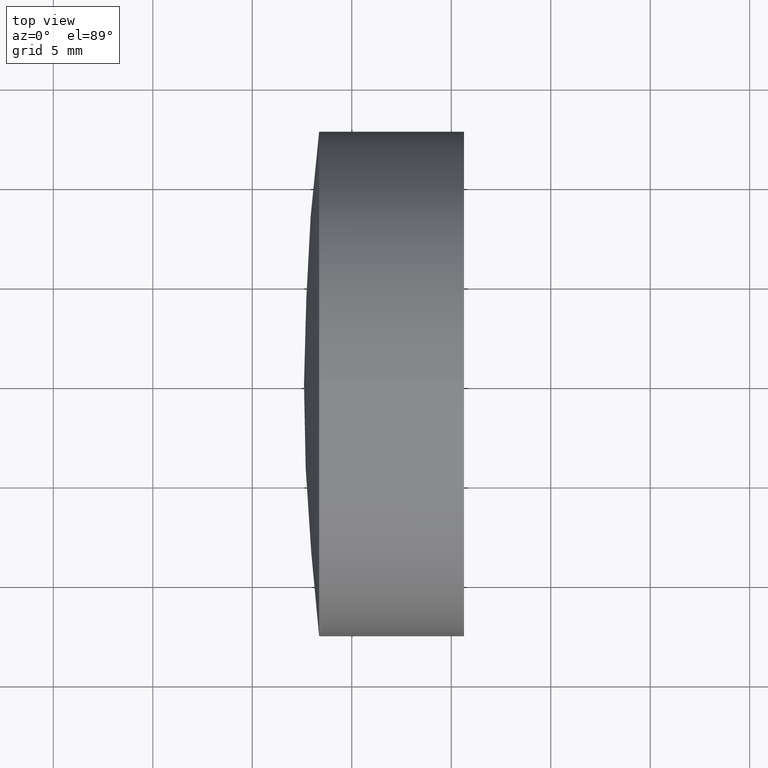
[diagram: clean part render]
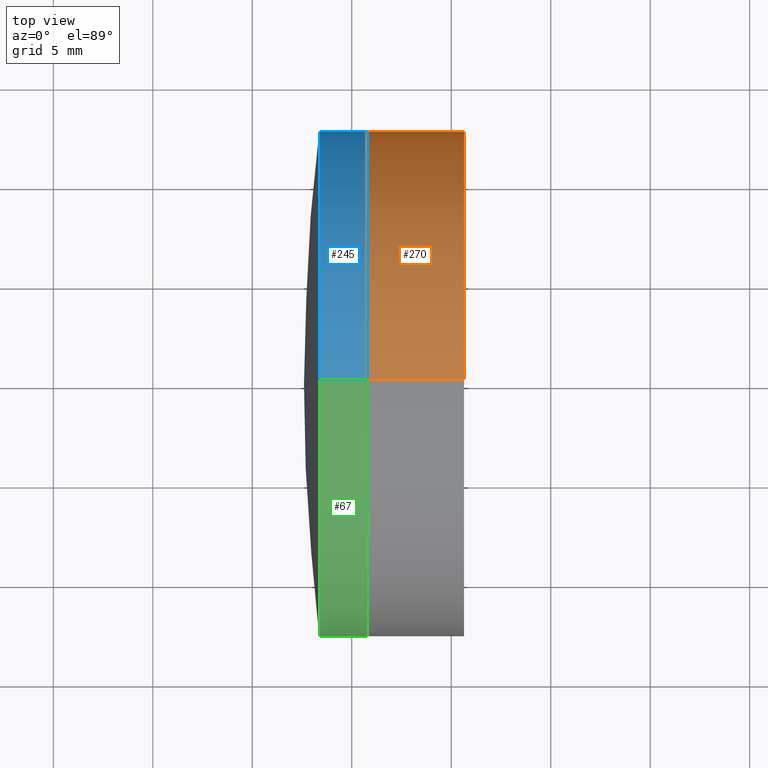
[diagram: same view with three faces highlighted in distinct colors, each labeled with its STEP entity id]
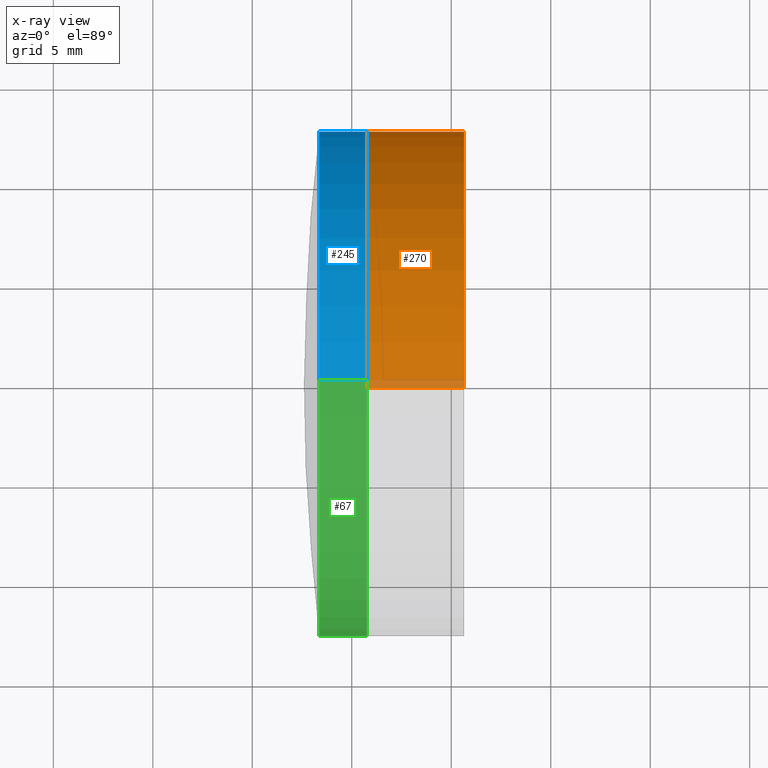
[diagram: x-ray of the same camera — body ghosted, the three highlighted faces saturated]
A machine part, top view with three faces highlighted in distinct colors.
The next image is the same camera in x-ray (body ghosted, the three faces saturated) — at least one of them is partly hidden behind the body in this view.
Their STEP definitions:

[orange] entity #270 — the highlighted cylindrical surface (partial cylindrical patch) has radius 12.7 mm, axis along (-1, -0, -0).
#5 = CARTESIAN_POINT ( 'NONE',  ( 345.7616526594428000, 0.0000000000000000000, 12.70000000000007900 ) ) ;
#27 = FACE_OUTER_BOUND ( 'NONE', #33, .T. ) ;
#33 = EDGE_LOOP ( 'NONE', ( #266, #141, #127, #136 ) ) ;
#39 = DIRECTION ( 'NONE',  ( -1.000000000000000000, -0.0000000000000000000, -0.0000000000000000000 ) ) ;
#43 = CIRCLE ( 'NONE', #188, 12.70000000000003100 ) ;
#84 = AXIS2_PLACEMENT_3D ( 'NONE', #126, #128, #284 ) ;
#87 = DIRECTION ( 'NONE',  ( -1.000000000000000000, -0.0000000000000000000, -0.0000000000000000000 ) ) ;
#88 = CIRCLE ( 'NONE', #125, 12.70000000000000300 ) ;
#98 = CARTESIAN_POINT ( 'NONE',  ( 345.7616526594428000, 1.555301434917148100E-015, -12.70000000000007200 ) ) ;
#125 = AXIS2_PLACEMENT_3D ( 'NONE', #155, #315, #129 ) ;
#126 = CARTESIAN_POINT ( 'NONE',  ( -0.5519199926577972300, 0.0000000000000000000, 0.0000000000000000000 ) ) ;
#127 = ORIENTED_EDGE ( 'NONE', *, *, #333, .F. ) ;
#128 = DIRECTION ( 'NONE',  ( -1.000000000000000000, -0.0000000000000000000, -0.0000000000000000000 ) ) ;
#129 = DIRECTION ( 'NONE',  ( 0.0000000000000000000, 0.0000000000000000000, 1.000000000000000000 ) ) ;
#131 = VECTOR ( 'NONE', #184, 1000.000000000000000 ) ;
#136 = ORIENTED_EDGE ( 'NONE', *, *, #216, .F. ) ;
#141 = ORIENTED_EDGE ( 'NONE', *, *, #292, .T. ) ;
#150 = VERTEX_POINT ( 'NONE', #5 ) ;
#155 = CARTESIAN_POINT ( 'NONE',  ( 350.6404488445973600, 0.0000000000000000000, 0.0000000000000000000 ) ) ;
#184 = DIRECTION ( 'NONE',  ( -1.000000000000000000, -0.0000000000000000000, -0.0000000000000000000 ) ) ;
#188 = AXIS2_PLACEMENT_3D ( 'NONE', #218, #39, #193 ) ;
#193 = DIRECTION ( 'NONE',  ( 0.0000000000000000000, 0.0000000000000000000, 1.000000000000000000 ) ) ;
#194 = CARTESIAN_POINT ( 'NONE',  ( 350.6404488445973600, 0.0000000000000000000, 12.70000000000000300 ) ) ;
#216 = EDGE_CURVE ( 'NONE', #307, #150, #337, .T. ) ;
#218 = CARTESIAN_POINT ( 'NONE',  ( 345.7616526594428000, 0.0000000000000000000, 0.0000000000000000000 ) ) ;
#221 = EDGE_CURVE ( 'NONE', #307, #241, #88, .T. ) ;
#241 = VERTEX_POINT ( 'NONE', #286 ) ;
#246 = VECTOR ( 'NONE', #87, 1000.000000000000000 ) ;
#257 = CARTESIAN_POINT ( 'NONE',  ( -0.5519199926577972300, 0.0000000000000000000, 12.70000000000001700 ) ) ;
#266 = ORIENTED_EDGE ( 'NONE', *, *, #221, .T. ) ;
#268 = CARTESIAN_POINT ( 'NONE',  ( -0.5519199926577972300, 1.555301434917140600E-015, -12.70000000000001700 ) ) ;
#270 = ADVANCED_FACE ( 'NONE', ( #27 ), #302, .T. ) ;
#275 = VERTEX_POINT ( 'NONE', #98 ) ;
#284 = DIRECTION ( 'NONE',  ( 0.0000000000000000000, 0.0000000000000000000, 1.000000000000000000 ) ) ;
#286 = CARTESIAN_POINT ( 'NONE',  ( 350.6404488445973600, 1.555301434917139800E-015, -12.70000000000000300 ) ) ;
#292 = EDGE_CURVE ( 'NONE', #241, #275, #306, .T. ) ;
#302 = CYLINDRICAL_SURFACE ( 'NONE', #84, 12.70000000000001700 ) ;
#306 = LINE ( 'NONE', #268, #246 ) ;
#307 = VERTEX_POINT ( 'NONE', #194 ) ;
#315 = DIRECTION ( 'NONE',  ( -1.000000000000000000, -0.0000000000000000000, -0.0000000000000000000 ) ) ;
#333 = EDGE_CURVE ( 'NONE', #150, #275, #43, .T. ) ;
#337 = LINE ( 'NONE', #257, #131 ) ;

[blue] entity #245 — the highlighted cylindrical surface (partial cylindrical patch) has radius 12.7 mm, axis along (-1, -0, -0).
#14 = CARTESIAN_POINT ( 'NONE',  ( 343.3607866747492500, 0.0000000000000000000, -12.69999999999999200 ) ) ;
#18 = AXIS2_PLACEMENT_3D ( 'NONE', #232, #346, #56 ) ;
#32 = AXIS2_PLACEMENT_3D ( 'NONE', #97, #254, #79 ) ;
#34 = DIRECTION ( 'NONE',  ( -1.000000000000000000, -0.0000000000000000000, -0.0000000000000000000 ) ) ;
#41 = CARTESIAN_POINT ( 'NONE',  ( 345.7616526594428000, 0.0000000000000000000, 12.70000000000000600 ) ) ;
#51 = CARTESIAN_POINT ( 'NONE',  ( 124.5233095260452400, 1.555301434917139200E-015, -12.70000000000000600 ) ) ;
#56 = DIRECTION ( 'NONE',  ( 0.0000000000000000000, 0.0000000000000000000, 1.000000000000000000 ) ) ;
#66 = CARTESIAN_POINT ( 'NONE',  ( 124.5233095260452400, 0.0000000000000000000, 12.70000000000000600 ) ) ;
#74 = VERTEX_POINT ( 'NONE', #215 ) ;
#76 = ORIENTED_EDGE ( 'NONE', *, *, #326, .F. ) ;
#79 = DIRECTION ( 'NONE',  ( 0.0000000000000000000, 0.0000000000000000000, 1.000000000000000000 ) ) ;
#96 = DIRECTION ( 'NONE',  ( -1.000000000000000000, -0.0000000000000000000, -0.0000000000000000000 ) ) ;
#97 = CARTESIAN_POINT ( 'NONE',  ( 345.7616526594428000, 0.0000000000000000000, 0.0000000000000000000 ) ) ;
#99 = CYLINDRICAL_SURFACE ( 'NONE', #18, 12.70000000000000600 ) ;
#106 = EDGE_LOOP ( 'NONE', ( #327, #157, #173, #76 ) ) ;
#121 = LINE ( 'NONE', #51, #148 ) ;
#148 = VECTOR ( 'NONE', #96, 1000.000000000000000 ) ;
#151 = AXIS2_PLACEMENT_3D ( 'NONE', #170, #331, #243 ) ;
#153 = CARTESIAN_POINT ( 'NONE',  ( 345.7616526594428000, 1.555301434917139200E-015, -12.70000000000000600 ) ) ;
#157 = ORIENTED_EDGE ( 'NONE', *, *, #285, .T. ) ;
#170 = CARTESIAN_POINT ( 'NONE',  ( 343.3607866747492500, 0.0000000000000000000, 0.0000000000000000000 ) ) ;
#173 = ORIENTED_EDGE ( 'NONE', *, *, #305, .F. ) ;
#215 = CARTESIAN_POINT ( 'NONE',  ( 343.3607866747492500, -1.555301434917137800E-015, 12.69999999999999900 ) ) ;
#223 = CIRCLE ( 'NONE', #151, 12.70000000000000600 ) ;
#232 = CARTESIAN_POINT ( 'NONE',  ( 124.5233095260452400, 0.0000000000000000000, 0.0000000000000000000 ) ) ;
#235 = VECTOR ( 'NONE', #34, 1000.000000000000000 ) ;
#243 = DIRECTION ( 'NONE',  ( 0.0000000000000000000, 0.0000000000000000000, 1.000000000000000000 ) ) ;
#245 = ADVANCED_FACE ( 'NONE', ( #287 ), #99, .T. ) ;
#254 = DIRECTION ( 'NONE',  ( -1.000000000000000000, -0.0000000000000000000, -0.0000000000000000000 ) ) ;
#267 = EDGE_CURVE ( 'NONE', #314, #291, #279, .T. ) ;
#277 = LINE ( 'NONE', #66, #235 ) ;
#279 = CIRCLE ( 'NONE', #32, 12.70000000000000600 ) ;
#285 = EDGE_CURVE ( 'NONE', #291, #319, #121, .T. ) ;
#287 = FACE_OUTER_BOUND ( 'NONE', #106, .T. ) ;
#291 = VERTEX_POINT ( 'NONE', #153 ) ;
#305 = EDGE_CURVE ( 'NONE', #74, #319, #223, .T. ) ;
#314 = VERTEX_POINT ( 'NONE', #41 ) ;
#319 = VERTEX_POINT ( 'NONE', #14 ) ;
#326 = EDGE_CURVE ( 'NONE', #314, #74, #277, .T. ) ;
#327 = ORIENTED_EDGE ( 'NONE', *, *, #267, .T. ) ;
#331 = DIRECTION ( 'NONE',  ( -1.000000000000000000, -0.0000000000000000000, -0.0000000000000000000 ) ) ;
#346 = DIRECTION ( 'NONE',  ( -1.000000000000000000, -0.0000000000000000000, -0.0000000000000000000 ) ) ;

[green] entity #67 — the highlighted cylindrical surface (partial cylindrical patch) has radius 12.7 mm, axis along (-1, -0, -0).
#1 = CARTESIAN_POINT ( 'NONE',  ( 345.7616526594428000, 0.0000000000000000000, 0.0000000000000000000 ) ) ;
#9 = DIRECTION ( 'NONE',  ( -1.000000000000000000, -0.0000000000000000000, -0.0000000000000000000 ) ) ;
#13 = FACE_OUTER_BOUND ( 'NONE', #242, .T. ) ;
#14 = CARTESIAN_POINT ( 'NONE',  ( 343.3607866747492500, 0.0000000000000000000, -12.69999999999999200 ) ) ;
#22 = CIRCLE ( 'NONE', #224, 12.70000000000000600 ) ;
#34 = DIRECTION ( 'NONE',  ( -1.000000000000000000, -0.0000000000000000000, -0.0000000000000000000 ) ) ;
#37 = DIRECTION ( 'NONE',  ( 0.0000000000000000000, 0.0000000000000000000, 1.000000000000000000 ) ) ;
#41 = CARTESIAN_POINT ( 'NONE',  ( 345.7616526594428000, 0.0000000000000000000, 12.70000000000000600 ) ) ;
#45 = AXIS2_PLACEMENT_3D ( 'NONE', #1, #158, #317 ) ;
#51 = CARTESIAN_POINT ( 'NONE',  ( 124.5233095260452400, 1.555301434917139200E-015, -12.70000000000000600 ) ) ;
#60 = CYLINDRICAL_SURFACE ( 'NONE', #86, 12.70000000000000600 ) ;
#66 = CARTESIAN_POINT ( 'NONE',  ( 124.5233095260452400, 0.0000000000000000000, 12.70000000000000600 ) ) ;
#67 = ADVANCED_FACE ( 'NONE', ( #13 ), #60, .T. ) ;
#74 = VERTEX_POINT ( 'NONE', #215 ) ;
#86 = AXIS2_PLACEMENT_3D ( 'NONE', #265, #9, #37 ) ;
#96 = DIRECTION ( 'NONE',  ( -1.000000000000000000, -0.0000000000000000000, -0.0000000000000000000 ) ) ;
#114 = ORIENTED_EDGE ( 'NONE', *, *, #185, .T. ) ;
#117 = ORIENTED_EDGE ( 'NONE', *, *, #326, .T. ) ;
#121 = LINE ( 'NONE', #51, #148 ) ;
#138 = DIRECTION ( 'NONE',  ( -1.000000000000000000, -0.0000000000000000000, -0.0000000000000000000 ) ) ;
#148 = VECTOR ( 'NONE', #96, 1000.000000000000000 ) ;
#153 = CARTESIAN_POINT ( 'NONE',  ( 345.7616526594428000, 1.555301434917139200E-015, -12.70000000000000600 ) ) ;
#158 = DIRECTION ( 'NONE',  ( -1.000000000000000000, -0.0000000000000000000, -0.0000000000000000000 ) ) ;
#175 = ORIENTED_EDGE ( 'NONE', *, *, #285, .F. ) ;
#185 = EDGE_CURVE ( 'NONE', #291, #314, #313, .T. ) ;
#191 = ORIENTED_EDGE ( 'NONE', *, *, #344, .F. ) ;
#215 = CARTESIAN_POINT ( 'NONE',  ( 343.3607866747492500, -1.555301434917137800E-015, 12.69999999999999900 ) ) ;
#224 = AXIS2_PLACEMENT_3D ( 'NONE', #328, #138, #298 ) ;
#235 = VECTOR ( 'NONE', #34, 1000.000000000000000 ) ;
#242 = EDGE_LOOP ( 'NONE', ( #175, #114, #117, #191 ) ) ;
#265 = CARTESIAN_POINT ( 'NONE',  ( 124.5233095260452400, 0.0000000000000000000, 0.0000000000000000000 ) ) ;
#277 = LINE ( 'NONE', #66, #235 ) ;
#285 = EDGE_CURVE ( 'NONE', #291, #319, #121, .T. ) ;
#291 = VERTEX_POINT ( 'NONE', #153 ) ;
#298 = DIRECTION ( 'NONE',  ( 0.0000000000000000000, 0.0000000000000000000, 1.000000000000000000 ) ) ;
#313 = CIRCLE ( 'NONE', #45, 12.70000000000000600 ) ;
#314 = VERTEX_POINT ( 'NONE', #41 ) ;
#317 = DIRECTION ( 'NONE',  ( 0.0000000000000000000, 0.0000000000000000000, 1.000000000000000000 ) ) ;
#319 = VERTEX_POINT ( 'NONE', #14 ) ;
#326 = EDGE_CURVE ( 'NONE', #314, #74, #277, .T. ) ;
#328 = CARTESIAN_POINT ( 'NONE',  ( 343.3607866747492500, 0.0000000000000000000, 0.0000000000000000000 ) ) ;
#344 = EDGE_CURVE ( 'NONE', #319, #74, #22, .T. ) ;